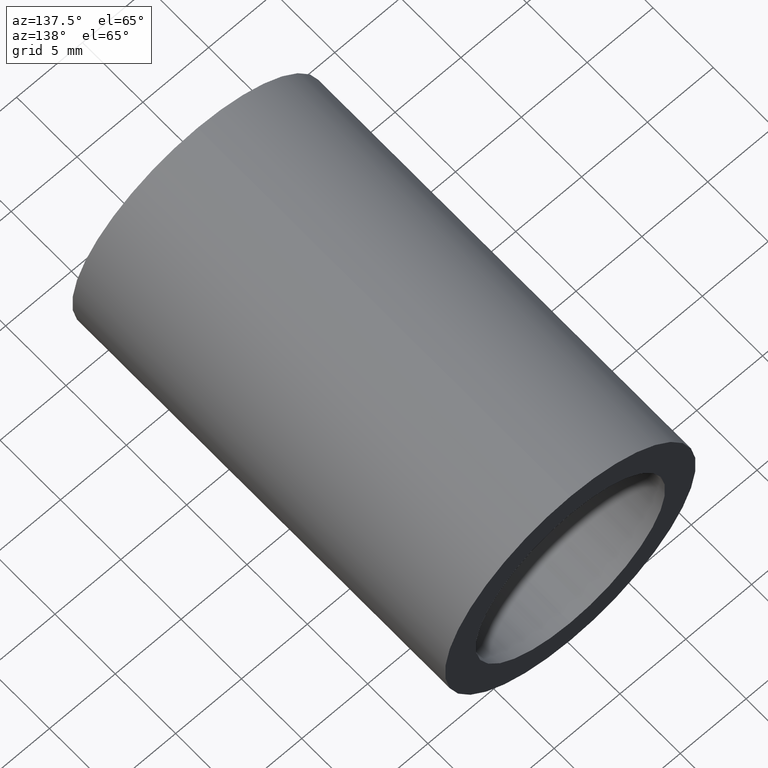
[diagram: clean part render]
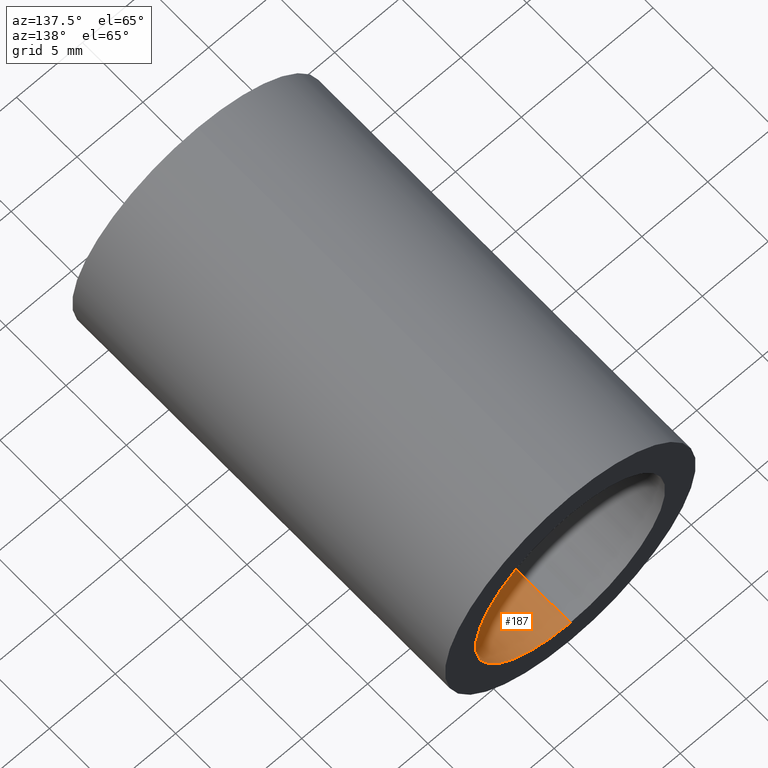
[diagram: same view with one face highlighted and labeled with its STEP entity id]
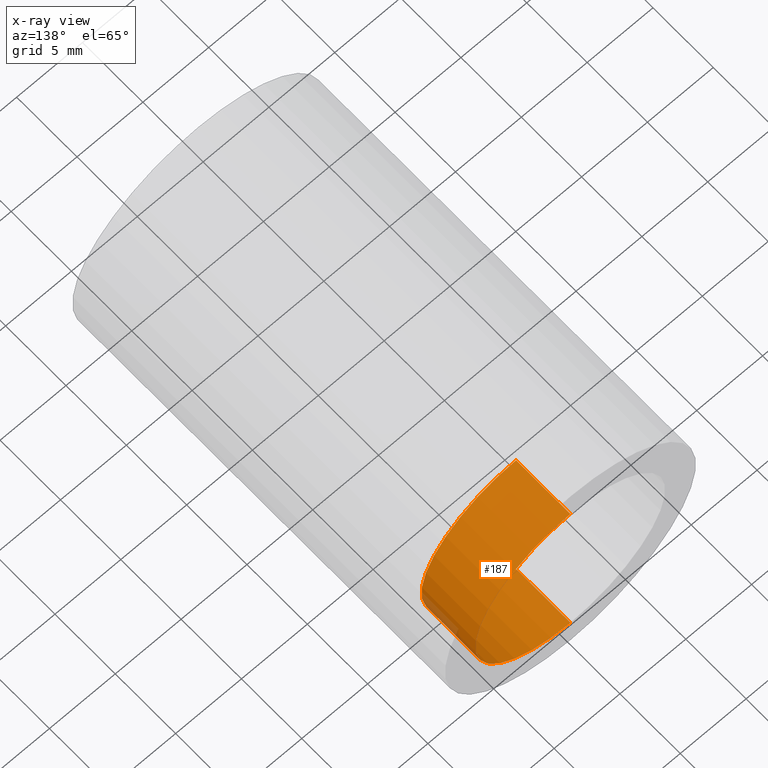
[diagram: x-ray of the same camera — body ghosted, the highlighted face saturated]
A machine part, auxiliary view. The second image highlights one B-rep face of the part: STEP entity #187.
The next image is the same camera in x-ray: the body ghosted, the highlighted face saturated — about 2% of this face is hidden behind the body in this view.
In plain terms, the highlighted cylindrical surface (partial cylindrical patch) has radius 7.2 mm, axis along (-0, 1, -0).
Its self-contained STEP definition (entity closure, byte-faithful):
#36 = DIRECTION ( 'NONE',  ( -0.0000000000000000000, 1.000000000000000000, -0.0000000000000000000 ) ) ;
#39 = CARTESIAN_POINT ( 'NONE',  ( 8.817456953860961000E-016, 161.3761669434274500, -7.200000000000015300 ) ) ;
#42 = DIRECTION ( 'NONE',  ( 0.0000000000000000000, 0.0000000000000000000, 1.000000000000000000 ) ) ;
#50 = VERTEX_POINT ( 'NONE', #222 ) ;
#62 = VERTEX_POINT ( 'NONE', #267 ) ;
#69 = AXIS2_PLACEMENT_3D ( 'NONE', #616, #36, #42 ) ;
#109 = CARTESIAN_POINT ( 'NONE',  ( 0.0000000000000000000, 30.89999999999998400, 7.200000000000014400 ) ) ;
#125 = EDGE_CURVE ( 'NONE', #259, #469, #298, .T. ) ;
#129 = ORIENTED_EDGE ( 'NONE', *, *, #125, .T. ) ;
#151 = EDGE_CURVE ( 'NONE', #62, #469, #419, .T. ) ;
#154 = ORIENTED_EDGE ( 'NONE', *, *, #589, .T. ) ;
#158 = AXIS2_PLACEMENT_3D ( 'NONE', #269, #325, #380 ) ;
#177 = DIRECTION ( 'NONE',  ( -0.0000000000000000000, 1.000000000000000000, -0.0000000000000000000 ) ) ;
#187 = ADVANCED_FACE ( 'NONE', ( #255 ), #374, .F. ) ;
#215 = ORIENTED_EDGE ( 'NONE', *, *, #151, .F. ) ;
#222 = CARTESIAN_POINT ( 'NONE',  ( 0.0000000000000000000, 26.39999999999997700, 7.200000000000015300 ) ) ;
#226 = DIRECTION ( 'NONE',  ( 0.0000000000000000000, 0.0000000000000000000, 1.000000000000000000 ) ) ;
#227 = DIRECTION ( 'NONE',  ( -0.0000000000000000000, 1.000000000000000000, -0.0000000000000000000 ) ) ;
#254 = CARTESIAN_POINT ( 'NONE',  ( 8.817456953860959100E-016, 30.89999999999998400, -7.200000000000014400 ) ) ;
#255 = FACE_OUTER_BOUND ( 'NONE', #543, .T. ) ;
#259 = VERTEX_POINT ( 'NONE', #109 ) ;
#267 = CARTESIAN_POINT ( 'NONE',  ( 8.817456953860961000E-016, 26.39999999999997700, -7.200000000000015300 ) ) ;
#269 = CARTESIAN_POINT ( 'NONE',  ( 0.0000000000000000000, 26.39999999999997700, 0.0000000000000000000 ) ) ;
#282 = VECTOR ( 'NONE', #177, 1000.000000000000000 ) ;
#298 = CIRCLE ( 'NONE', #69, 7.200000000000014400 ) ;
#325 = DIRECTION ( 'NONE',  ( -0.0000000000000000000, 1.000000000000000000, -0.0000000000000000000 ) ) ;
#357 = AXIS2_PLACEMENT_3D ( 'NONE', #407, #227, #226 ) ;
#374 = CYLINDRICAL_SURFACE ( 'NONE', #357, 7.200000000000015300 ) ;
#380 = DIRECTION ( 'NONE',  ( 0.0000000000000000000, 0.0000000000000000000, 1.000000000000000000 ) ) ;
#407 = CARTESIAN_POINT ( 'NONE',  ( 0.0000000000000000000, 161.3761669434274500, 0.0000000000000000000 ) ) ;
#419 = LINE ( 'NONE', #39, #282 ) ;
#429 = CARTESIAN_POINT ( 'NONE',  ( 0.0000000000000000000, 161.3761669434274500, 7.200000000000015300 ) ) ;
#469 = VERTEX_POINT ( 'NONE', #254 ) ;
#502 = EDGE_CURVE ( 'NONE', #50, #62, #602, .T. ) ;
#529 = DIRECTION ( 'NONE',  ( -0.0000000000000000000, 1.000000000000000000, -0.0000000000000000000 ) ) ;
#532 = ORIENTED_EDGE ( 'NONE', *, *, #502, .F. ) ;
#543 = EDGE_LOOP ( 'NONE', ( #215, #532, #154, #129 ) ) ;
#567 = LINE ( 'NONE', #429, #576 ) ;
#576 = VECTOR ( 'NONE', #529, 1000.000000000000000 ) ;
#589 = EDGE_CURVE ( 'NONE', #50, #259, #567, .T. ) ;
#602 = CIRCLE ( 'NONE', #158, 7.200000000000015300 ) ;
#616 = CARTESIAN_POINT ( 'NONE',  ( 0.0000000000000000000, 30.89999999999998400, 0.0000000000000000000 ) ) ;